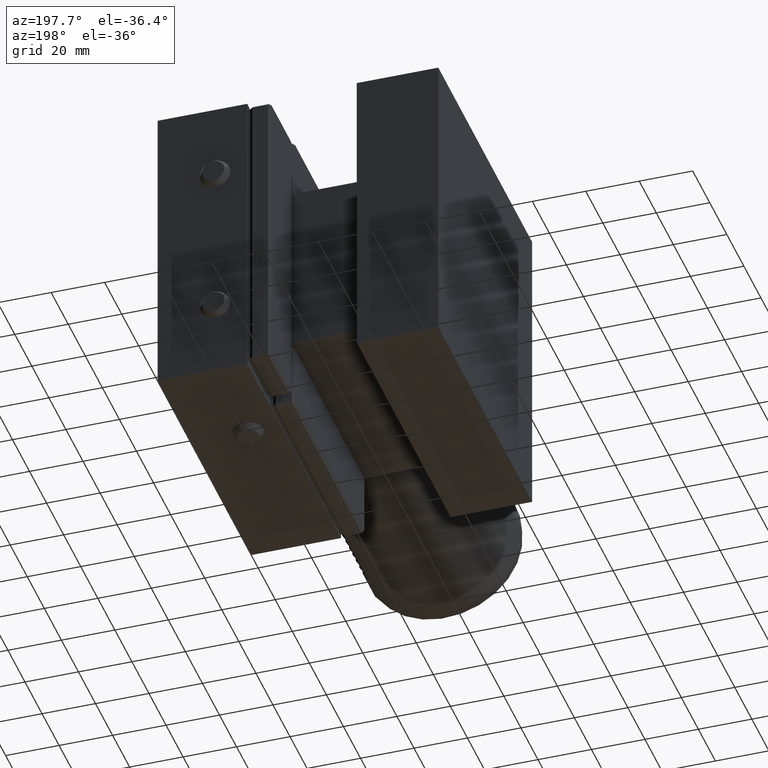
[diagram: clean part render]
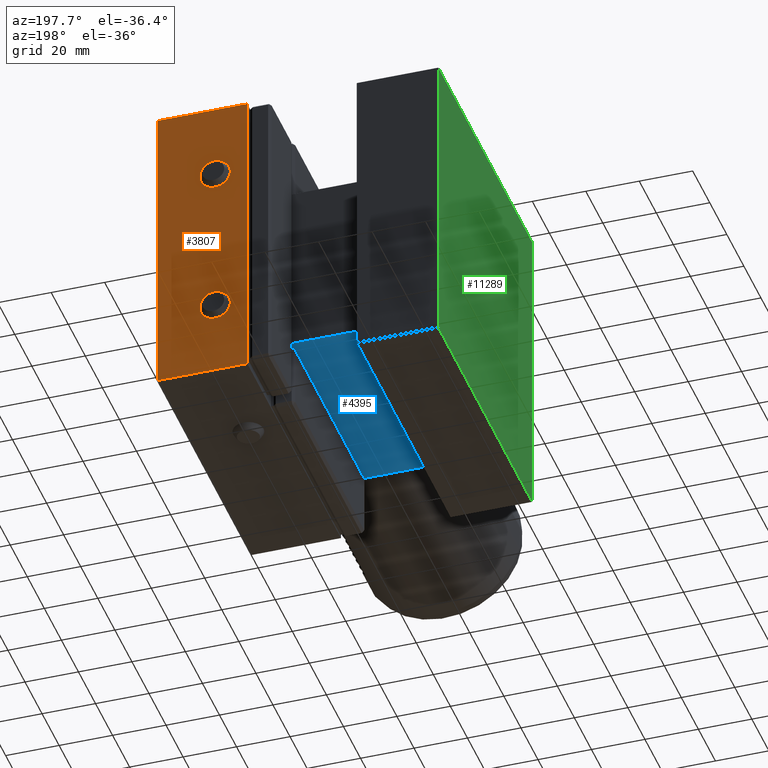
[diagram: same view with three faces highlighted in distinct colors, each labeled with its STEP entity id]
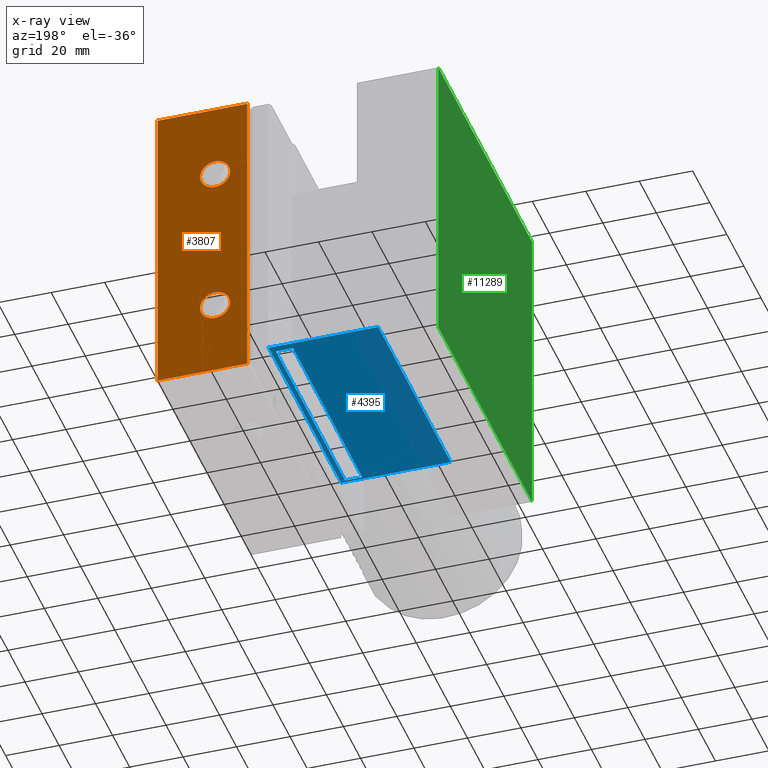
[diagram: x-ray of the same camera — body ghosted, the three highlighted faces saturated]
A machine part, auxiliary view with three faces highlighted in distinct colors.
The next image is the same camera in x-ray (body ghosted, the three faces saturated) — at least one of them is partly hidden behind the body in this view.
Their STEP definitions:

[orange] entity #3807 — the highlighted planar face has unit normal (-0, 1, 0).
#546 = VERTEX_POINT ( 'NONE', #15234 ) ;
#726 = VERTEX_POINT ( 'NONE', #8922 ) ;
#763 = ORIENTED_EDGE ( 'NONE', *, *, #14985, .T. ) ;
#1231 = FACE_OUTER_BOUND ( 'NONE', #6209, .T. ) ;
#1258 = AXIS2_PLACEMENT_3D ( 'NONE', #9091, #7927, #2507 ) ;
#1297 = EDGE_CURVE ( 'NONE', #546, #546, #1953, .T. ) ;
#1334 = DIRECTION ( 'NONE',  ( -1.000000000000000000, 0.000000000000000000, 0.000000000000000000 ) ) ;
#1953 = CIRCLE ( 'NONE', #10949, 5.671237021169541315 ) ;
#2113 = CARTESIAN_POINT ( 'NONE',  ( 42.49999999999998579, 110.0000000000000142, -57.50000000000000000 ) ) ;
#2144 = ORIENTED_EDGE ( 'NONE', *, *, #13920, .T. ) ;
#2339 = EDGE_CURVE ( 'NONE', #3344, #7158, #6414, .T. ) ;
#2360 = DIRECTION ( 'NONE',  ( -1.000000000000000000, -1.295371175675670281E-16, 0.000000000000000000 ) ) ;
#2507 = DIRECTION ( 'NONE',  ( -1.000000000000000000, 0.000000000000000000, 0.000000000000000000 ) ) ;
#3057 = CARTESIAN_POINT ( 'NONE',  ( 8.999999999999987566, 110.0000000000000142, 57.50000000000001421 ) ) ;
#3344 = VERTEX_POINT ( 'NONE', #3057 ) ;
#3807 = ADVANCED_FACE ( 'Defeature completata2_0', ( #14631, #3894, #1231 ), #16032, .T. ) ;
#3894 = FACE_BOUND ( 'NONE', #4746, .T. ) ;
#3983 = DIRECTION ( 'NONE',  ( -1.295371175675670281E-16, 1.000000000000000000, 0.000000000000000000 ) ) ;
#4035 = EDGE_CURVE ( 'NONE', #7158, #726, #15416, .T. ) ;
#4746 = EDGE_LOOP ( 'NONE', ( #2144 ) ) ;
#5152 = VECTOR ( 'NONE', #15982, 1000.000000000000000 ) ;
#6209 = EDGE_LOOP ( 'NONE', ( #763, #9932, #7542, #8962 ) ) ;
#6414 = LINE ( 'NONE', #14679, #5152 ) ;
#7158 = VERTEX_POINT ( 'NONE', #10826 ) ;
#7374 = CARTESIAN_POINT ( 'NONE',  ( 8.999999999999987566, 110.0000000000000142, 57.50000000000001421 ) ) ;
#7438 = DIRECTION ( 'NONE',  ( -1.206764157201257045E-16, -0.000000000000000000, -1.000000000000000000 ) ) ;
#7542 = ORIENTED_EDGE ( 'NONE', *, *, #2339, .T. ) ;
#7692 = CARTESIAN_POINT ( 'NONE',  ( 15.32876297883042938, 110.0000000000000142, -29.00000000000000000 ) ) ;
#7927 = DIRECTION ( 'NONE',  ( 1.295371175675670281E-16, -1.000000000000000000, 0.000000000000000000 ) ) ;
#8922 = CARTESIAN_POINT ( 'NONE',  ( 42.49999999999998579, 110.0000000000000142, -57.50000000000000000 ) ) ;
#8962 = ORIENTED_EDGE ( 'NONE', *, *, #4035, .T. ) ;
#9090 = CARTESIAN_POINT ( 'NONE',  ( 8.999999999999985789, 110.0000000000000142, -57.50000000000000000 ) ) ;
#9091 = CARTESIAN_POINT ( 'NONE',  ( 20.99999999999997158, 110.0000000000000142, -29.00000000000000000 ) ) ;
#9932 = ORIENTED_EDGE ( 'NONE', *, *, #12244, .T. ) ;
#10505 = CIRCLE ( 'NONE', #1258, 5.671237021169541315 ) ;
#10535 = VERTEX_POINT ( 'NONE', #7692 ) ;
#10826 = CARTESIAN_POINT ( 'NONE',  ( 42.49999999999999289, 110.0000000000000142, 57.50000000000000711 ) ) ;
#10949 = AXIS2_PLACEMENT_3D ( 'NONE', #13362, #14565, #1334 ) ;
#11277 = VECTOR ( 'NONE', #15286, 1000.000000000000000 ) ;
#11513 = EDGE_LOOP ( 'NONE', ( #12508 ) ) ;
#11849 = CARTESIAN_POINT ( 'NONE',  ( -90.00000000000000000, 110.0000000000000000, 0.000000000000000000 ) ) ;
#12244 = EDGE_CURVE ( 'NONE', #17292, #3344, #16701, .T. ) ;
#12508 = ORIENTED_EDGE ( 'NONE', *, *, #1297, .F. ) ;
#12932 = VECTOR ( 'NONE', #14169, 1000.000000000000000 ) ;
#13362 = CARTESIAN_POINT ( 'NONE',  ( 20.99999999999997868, 110.0000000000000142, 29.00000000000000000 ) ) ;
#13525 = VECTOR ( 'NONE', #7438, 1000.000000000000000 ) ;
#13920 = EDGE_CURVE ( 'NONE', #10535, #10535, #10505, .T. ) ;
#14169 = DIRECTION ( 'NONE',  ( -1.000000000000000000, -0.000000000000000000, -0.000000000000000000 ) ) ;
#14337 = AXIS2_PLACEMENT_3D ( 'NONE', #11849, #3983, #2360 ) ;
#14565 = DIRECTION ( 'NONE',  ( -1.295371175675670281E-16, 1.000000000000000000, -0.000000000000000000 ) ) ;
#14631 = FACE_BOUND ( 'NONE', #11513, .T. ) ;
#14679 = CARTESIAN_POINT ( 'NONE',  ( 42.49999999999999289, 110.0000000000000142, 57.50000000000000711 ) ) ;
#14985 = EDGE_CURVE ( 'NONE', #726, #17292, #15565, .T. ) ;
#15234 = CARTESIAN_POINT ( 'NONE',  ( 15.32876297883043648, 110.0000000000000142, 29.00000000000000000 ) ) ;
#15286 = DIRECTION ( 'NONE',  ( 7.080503983578800618E-17, -0.000000000000000000, 1.000000000000000000 ) ) ;
#15416 = LINE ( 'NONE', #2113, #13525 ) ;
#15565 = LINE ( 'NONE', #9090, #12932 ) ;
#15982 = DIRECTION ( 'NONE',  ( 1.000000000000000000, -0.000000000000000000, -2.071311613106634906E-16 ) ) ;
#16032 = PLANE ( 'NONE',  #14337 ) ;
#16140 = CARTESIAN_POINT ( 'NONE',  ( 8.999999999999985789, 110.0000000000000142, -57.50000000000000000 ) ) ;
#16701 = LINE ( 'NONE', #7374, #11277 ) ;
#17292 = VERTEX_POINT ( 'NONE', #16140 ) ;

[blue] entity #4395 — the highlighted planar face has unit normal (0, 0, -1).
#615 = VERTEX_POINT ( 'NONE', #16640 ) ;
#670 = DIRECTION ( 'NONE',  ( 0.7071067811865426878, -0.7071067811865523467, 0.000000000000000000 ) ) ;
#770 = CARTESIAN_POINT ( 'NONE',  ( -32.00000000000000000, -25.00000000000002132, -33.00000000000000000 ) ) ;
#817 = VERTEX_POINT ( 'NONE', #15204 ) ;
#831 = CARTESIAN_POINT ( 'NONE',  ( -2.600000000000254996, 4.400000000000163780, -33.00000000000000000 ) ) ;
#923 = LINE ( 'NONE', #831, #2416 ) ;
#973 = LINE ( 'NONE', #8658, #8708 ) ;
#1118 = DIRECTION ( 'NONE',  ( 0.000000000000000000, 0.000000000000000000, -1.000000000000000000 ) ) ;
#1149 = DIRECTION ( 'NONE',  ( 1.000000000000000000, 1.295371175675670281E-16, 0.000000000000000000 ) ) ;
#1425 = ORIENTED_EDGE ( 'NONE', *, *, #8958, .F. ) ;
#1751 = DIRECTION ( 'NONE',  ( -1.295371175675670281E-16, 1.000000000000000000, -0.000000000000000000 ) ) ;
#1910 = CARTESIAN_POINT ( 'NONE',  ( 0.7999999999999812816, -25.00000000000001776, -33.00000000000000000 ) ) ;
#2079 = EDGE_CURVE ( 'NONE', #615, #13282, #4533, .T. ) ;
#2086 = VECTOR ( 'NONE', #6641, 1000.000000000000000 ) ;
#2134 = EDGE_CURVE ( 'NONE', #817, #615, #4793, .T. ) ;
#2198 = CARTESIAN_POINT ( 'NONE',  ( 6.999999999999992006, 0.7999999999999686251, -33.00000000000000000 ) ) ;
#2416 = VECTOR ( 'NONE', #10218, 1000.000000000000000 ) ;
#2423 = CARTESIAN_POINT ( 'NONE',  ( 9.000000000000005329, -25.00000000000002132, -33.00000000000000000 ) ) ;
#2449 = LINE ( 'NONE', #3982, #8784 ) ;
#2493 = ORIENTED_EDGE ( 'NONE', *, *, #13724, .F. ) ;
#2504 = VERTEX_POINT ( 'NONE', #4537 ) ;
#2579 = AXIS2_PLACEMENT_3D ( 'NONE', #770, #1118, #9085 ) ;
#2738 = CARTESIAN_POINT ( 'NONE',  ( -32.00000000000000000, 0.7999999999999639622, -33.00000000000000000 ) ) ;
#3069 = CARTESIAN_POINT ( 'NONE',  ( 7.000000000000006217, 82.20000000000003126, -33.00000000000000000 ) ) ;
#3375 = DIRECTION ( 'NONE',  ( -0.7071067811865576758, -0.7071067811865374697, 0.000000000000000000 ) ) ;
#3411 = VERTEX_POINT ( 'NONE', #14213 ) ;
#3640 = LINE ( 'NONE', #5042, #16662 ) ;
#3659 = LINE ( 'NONE', #13898, #8520 ) ;
#3683 = VECTOR ( 'NONE', #15369, 1000.000000000000000 ) ;
#3694 = EDGE_CURVE ( 'NONE', #11039, #11092, #973, .T. ) ;
#3756 = VECTOR ( 'NONE', #4605, 1000.000000000000000 ) ;
#3797 = VERTEX_POINT ( 'NONE', #6454 ) ;
#3982 = CARTESIAN_POINT ( 'NONE',  ( 7.199999999999998401, -25.00000000000002487, -33.00000000000000000 ) ) ;
#4181 = VERTEX_POINT ( 'NONE', #8399 ) ;
#4187 = EDGE_CURVE ( 'NONE', #3797, #5127, #15067, .T. ) ;
#4279 = EDGE_LOOP ( 'NONE', ( #16843, #15699, #10675, #6594, #7926, #12692, #10690, #2493 ) ) ;
#4329 = VECTOR ( 'NONE', #8600, 1000.000000000000000 ) ;
#4395 = ADVANCED_FACE ( 'Defeature completata2_78', ( #7557, #7657 ), #10145, .T. ) ;
#4405 = EDGE_CURVE ( 'NONE', #4916, #14220, #15745, .T. ) ;
#4416 = LINE ( 'NONE', #1910, #6021 ) ;
#4533 = LINE ( 'NONE', #15248, #4329 ) ;
#4537 = CARTESIAN_POINT ( 'NONE',  ( 0.7999999999999815037, 0.9999999999999749090, -33.00000000000000000 ) ) ;
#4605 = DIRECTION ( 'NONE',  ( -1.000000000000000000, -1.206764157201236830E-16, -0.000000000000000000 ) ) ;
#4793 = LINE ( 'NONE', #11495, #11103 ) ;
#4916 = VERTEX_POINT ( 'NONE', #6440 ) ;
#5042 = CARTESIAN_POINT ( 'NONE',  ( -32.14999999999999147, -1.015914406786812594E-16, -33.00000000000000000 ) ) ;
#5127 = VERTEX_POINT ( 'NONE', #16869 ) ;
#5350 = LINE ( 'NONE', #2738, #3756 ) ;
#6021 = VECTOR ( 'NONE', #8650, 1000.000000000000000 ) ;
#6035 = CARTESIAN_POINT ( 'NONE',  ( 7.200000000000001954, 0.9999999999999731326, -33.00000000000000000 ) ) ;
#6440 = CARTESIAN_POINT ( 'NONE',  ( 9.000000000000001776, 6.938893903907228378E-15, -33.00000000000000000 ) ) ;
#6454 = CARTESIAN_POINT ( 'NONE',  ( -32.00000000000000000, 3.469446951953614189E-15, -33.00000000000000000 ) ) ;
#6594 = ORIENTED_EDGE ( 'NONE', *, *, #9974, .F. ) ;
#6641 = DIRECTION ( 'NONE',  ( -1.000000000000000000, 0.000000000000000000, 0.000000000000000000 ) ) ;
#7557 = FACE_BOUND ( 'NONE', #4279, .T. ) ;
#7657 = FACE_OUTER_BOUND ( 'NONE', #9971, .T. ) ;
#7773 = DIRECTION ( 'NONE',  ( -5.551115123125803656E-17, -1.000000000000000000, -0.000000000000000000 ) ) ;
#7800 = ORIENTED_EDGE ( 'NONE', *, *, #4187, .T. ) ;
#7926 = ORIENTED_EDGE ( 'NONE', *, *, #10838, .F. ) ;
#8399 = CARTESIAN_POINT ( 'NONE',  ( 7.200000000000003730, 82.00000000000001421, -33.00000000000000000 ) ) ;
#8520 = VECTOR ( 'NONE', #670, 1000.000000000000000 ) ;
#8600 = DIRECTION ( 'NONE',  ( 1.000000000000000000, -1.206764157201260743E-16, 0.000000000000000000 ) ) ;
#8650 = DIRECTION ( 'NONE',  ( -5.551115123125765446E-17, 1.000000000000000000, -0.000000000000000000 ) ) ;
#8658 = CARTESIAN_POINT ( 'NONE',  ( -25.40000000000055635, -31.59999999999965681, -33.00000000000000000 ) ) ;
#8708 = VECTOR ( 'NONE', #3375, 1000.000000000000000 ) ;
#8784 = VECTOR ( 'NONE', #7773, 1000.000000000000000 ) ;
#8958 = EDGE_CURVE ( 'NONE', #3797, #4916, #3640, .T. ) ;
#9043 = CARTESIAN_POINT ( 'NONE',  ( 8.999999999999991118, 85.00000000000000000, -33.00000000000000000 ) ) ;
#9085 = DIRECTION ( 'NONE',  ( -1.000000000000000000, 0.000000000000000000, -0.000000000000000000 ) ) ;
#9840 = EDGE_CURVE ( 'NONE', #14220, #5127, #13599, .T. ) ;
#9971 = EDGE_LOOP ( 'NONE', ( #16491, #11715, #1425, #7800 ) ) ;
#9974 = EDGE_CURVE ( 'NONE', #2504, #817, #4416, .T. ) ;
#10145 = PLANE ( 'NONE',  #2579 ) ;
#10218 = DIRECTION ( 'NONE',  ( -0.7071067811865527908, 0.7071067811865422437, 0.000000000000000000 ) ) ;
#10336 = EDGE_CURVE ( 'NONE', #11092, #3411, #5350, .T. ) ;
#10675 = ORIENTED_EDGE ( 'NONE', *, *, #2134, .F. ) ;
#10690 = ORIENTED_EDGE ( 'NONE', *, *, #3694, .F. ) ;
#10838 = EDGE_CURVE ( 'NONE', #3411, #2504, #923, .T. ) ;
#11039 = VERTEX_POINT ( 'NONE', #6035 ) ;
#11092 = VERTEX_POINT ( 'NONE', #2198 ) ;
#11103 = VECTOR ( 'NONE', #16830, 1000.000000000000000 ) ;
#11495 = CARTESIAN_POINT ( 'NONE',  ( -69.09999999999958220, 12.09999999999854303, -33.00000000000000000 ) ) ;
#11715 = ORIENTED_EDGE ( 'NONE', *, *, #4405, .F. ) ;
#12692 = ORIENTED_EDGE ( 'NONE', *, *, #10336, .F. ) ;
#13282 = VERTEX_POINT ( 'NONE', #3069 ) ;
#13599 = LINE ( 'NONE', #14806, #2086 ) ;
#13724 = EDGE_CURVE ( 'NONE', #4181, #11039, #2449, .T. ) ;
#13768 = CARTESIAN_POINT ( 'NONE',  ( -32.00000000000000000, -25.00000000000002132, -33.00000000000000000 ) ) ;
#13898 = CARTESIAN_POINT ( 'NONE',  ( 41.10000000000028564, 48.09999999999928377, -33.00000000000000000 ) ) ;
#14199 = EDGE_CURVE ( 'NONE', #13282, #4181, #3659, .T. ) ;
#14213 = CARTESIAN_POINT ( 'NONE',  ( 0.9999999999999913403, 0.7999999999999712896, -33.00000000000000000 ) ) ;
#14220 = VERTEX_POINT ( 'NONE', #9043 ) ;
#14806 = CARTESIAN_POINT ( 'NONE',  ( -32.00000000000000000, 85.00000000000000000, -33.00000000000000000 ) ) ;
#14907 = VECTOR ( 'NONE', #1751, 1000.000000000000000 ) ;
#15067 = LINE ( 'NONE', #13768, #14907 ) ;
#15204 = CARTESIAN_POINT ( 'NONE',  ( 0.7999999999999752864, 82.00000000000001421, -33.00000000000000000 ) ) ;
#15248 = CARTESIAN_POINT ( 'NONE',  ( -31.99999999999998579, 82.20000000000003126, -33.00000000000000000 ) ) ;
#15369 = DIRECTION ( 'NONE',  ( -1.295371175675670281E-16, 1.000000000000000000, -0.000000000000000000 ) ) ;
#15699 = ORIENTED_EDGE ( 'NONE', *, *, #2079, .F. ) ;
#15745 = LINE ( 'NONE', #2423, #3683 ) ;
#16491 = ORIENTED_EDGE ( 'NONE', *, *, #9840, .F. ) ;
#16640 = CARTESIAN_POINT ( 'NONE',  ( 0.9999999999999731326, 82.20000000000000284, -33.00000000000000000 ) ) ;
#16662 = VECTOR ( 'NONE', #1149, 1000.000000000000000 ) ;
#16830 = DIRECTION ( 'NONE',  ( 0.7071067811865379138, 0.7071067811865572317, 0.000000000000000000 ) ) ;
#16843 = ORIENTED_EDGE ( 'NONE', *, *, #14199, .F. ) ;
#16869 = CARTESIAN_POINT ( 'NONE',  ( -31.99999999999998579, 85.00000000000000000, -33.00000000000000000 ) ) ;

[green] entity #11289 — the highlighted planar face has unit normal (-1, -0, 0).
#136 = CARTESIAN_POINT ( 'NONE',  ( -62.49999999999997158, -4.033042958854338900E-15, 0.000000000000000000 ) ) ;
#408 = CARTESIAN_POINT ( 'NONE',  ( -62.49999999999997158, -25.00000000000003553, -57.50000000000000000 ) ) ;
#757 = DIRECTION ( 'NONE',  ( -1.295371175675670281E-16, 1.000000000000000000, -0.000000000000000000 ) ) ;
#786 = VERTEX_POINT ( 'NONE', #8114 ) ;
#1113 = VERTEX_POINT ( 'NONE', #15413 ) ;
#1418 = DIRECTION ( 'NONE',  ( 0.000000000000000000, 0.000000000000000000, -1.000000000000000000 ) ) ;
#1719 = VECTOR ( 'NONE', #17318, 1000.000000000000000 ) ;
#1923 = FACE_OUTER_BOUND ( 'NONE', #7068, .T. ) ;
#2136 = CARTESIAN_POINT ( 'NONE',  ( -62.49999999999997158, -25.00000000000003553, 57.50000000000000711 ) ) ;
#2995 = CARTESIAN_POINT ( 'NONE',  ( -62.49999999999997158, -3.469446951953614189E-15, -57.50000000000000000 ) ) ;
#3044 = DIRECTION ( 'NONE',  ( -1.000000000000000000, -1.295371175675670281E-16, 0.000000000000000000 ) ) ;
#3296 = CARTESIAN_POINT ( 'NONE',  ( -62.49999999999997158, -25.00000000000003553, 57.50000000000000711 ) ) ;
#3523 = CARTESIAN_POINT ( 'NONE',  ( -62.49999999999999289, 110.0000000000000000, 57.50000000000000711 ) ) ;
#3627 = ORIENTED_EDGE ( 'NONE', *, *, #16066, .F. ) ;
#3872 = CARTESIAN_POINT ( 'NONE',  ( -62.49999999999999289, 110.0000000000000000, 57.50000000000000711 ) ) ;
#3968 = VECTOR ( 'NONE', #15087, 1000.000000000000000 ) ;
#4434 = ORIENTED_EDGE ( 'NONE', *, *, #10931, .T. ) ;
#4520 = PLANE ( 'NONE',  #7855 ) ;
#6481 = LINE ( 'NONE', #136, #12714 ) ;
#7038 = EDGE_CURVE ( 'NONE', #13259, #786, #12577, .T. ) ;
#7068 = EDGE_LOOP ( 'NONE', ( #4434, #14892, #10756, #3627 ) ) ;
#7855 = AXIS2_PLACEMENT_3D ( 'NONE', #3296, #3044, #11403 ) ;
#8114 = CARTESIAN_POINT ( 'NONE',  ( -62.49999999999999289, 110.0000000000000000, -57.50000000000000000 ) ) ;
#8188 = LINE ( 'NONE', #3872, #1719 ) ;
#8510 = VERTEX_POINT ( 'NONE', #3523 ) ;
#8800 = LINE ( 'NONE', #2136, #16689 ) ;
#10756 = ORIENTED_EDGE ( 'NONE', *, *, #7038, .F. ) ;
#10931 = EDGE_CURVE ( 'NONE', #1113, #8510, #8800, .T. ) ;
#11289 = ADVANCED_FACE ( 'Defeature completata2_76', ( #1923 ), #4520, .T. ) ;
#11403 = DIRECTION ( 'NONE',  ( 1.295371175675670281E-16, -1.000000000000000000, 0.000000000000000000 ) ) ;
#12577 = LINE ( 'NONE', #408, #3968 ) ;
#12714 = VECTOR ( 'NONE', #1418, 1000.000000000000000 ) ;
#13259 = VERTEX_POINT ( 'NONE', #2995 ) ;
#14892 = ORIENTED_EDGE ( 'NONE', *, *, #15063, .F. ) ;
#15063 = EDGE_CURVE ( 'NONE', #786, #8510, #8188, .T. ) ;
#15087 = DIRECTION ( 'NONE',  ( -1.295371175675670281E-16, 1.000000000000000000, -0.000000000000000000 ) ) ;
#15413 = CARTESIAN_POINT ( 'NONE',  ( -62.49999999999997158, -3.469446951953614189E-15, 57.50000000000000711 ) ) ;
#16066 = EDGE_CURVE ( 'NONE', #1113, #13259, #6481, .T. ) ;
#16689 = VECTOR ( 'NONE', #757, 1000.000000000000000 ) ;
#17318 = DIRECTION ( 'NONE',  ( -0.000000000000000000, -0.000000000000000000, 1.000000000000000000 ) ) ;